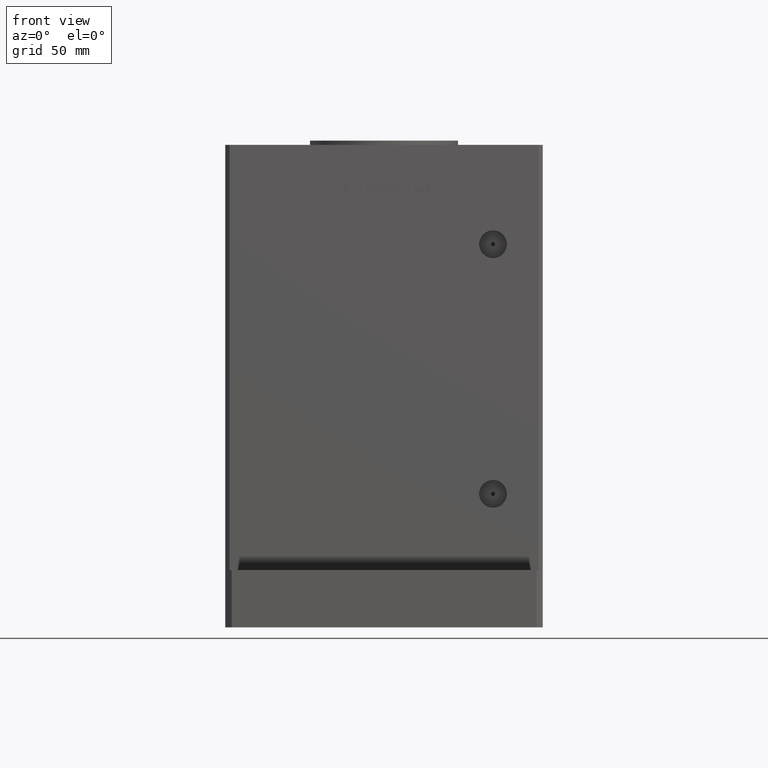
[diagram: clean part render]
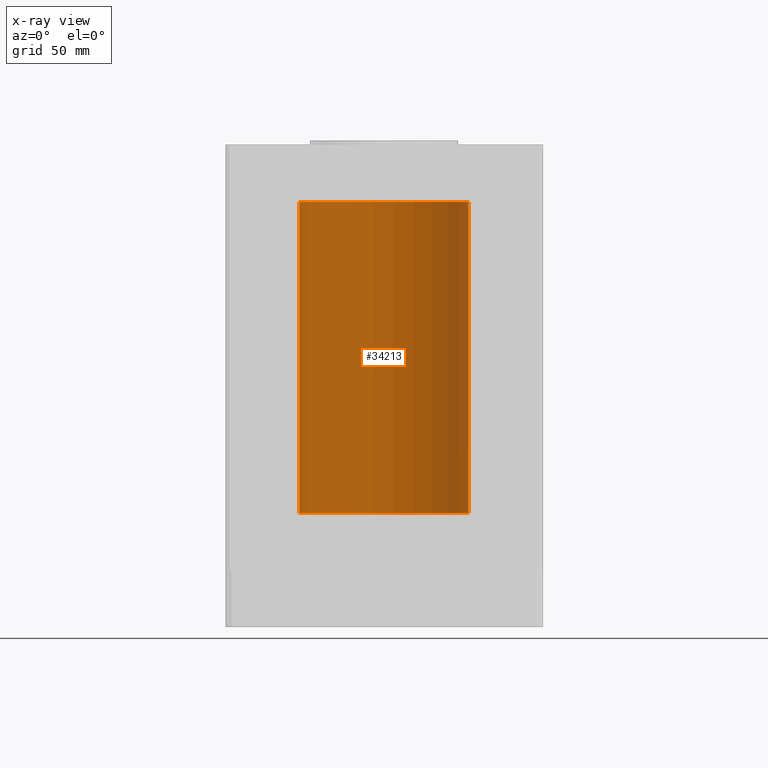
[diagram: x-ray — body ghosted, one internal face saturated and labeled with its STEP entity id]
A machine part, front view, then the same camera in x-ray: the body is ghosted and one INTERNAL B-rep face — a face not visible from any outside direction — is saturated and labeled: STEP entity #34213.
In plain terms, the highlighted cylindrical surface (partial cylindrical patch) has radius 40 mm, axis along (-0, -0, -1).
Its self-contained STEP definition (entity closure, byte-faithful):
#665 = AXIS2_PLACEMENT_3D ( 'NONE', #23748, #14524, #39236 ) ;
#4923 = ORIENTED_EDGE ( 'NONE', *, *, #43145, .F. ) ;
#6420 = VERTEX_POINT ( 'NONE', #47089 ) ;
#6900 = CARTESIAN_POINT ( 'NONE',  ( 40.00000000000000000, 4.898587196589413026E-15, 147.0000000000000000 ) ) ;
#7388 = EDGE_CURVE ( 'NONE', #22266, #31994, #44844, .T. ) ;
#7496 = EDGE_LOOP ( 'NONE', ( #4923, #38839, #38185, #36241 ) ) ;
#7855 = DIRECTION ( 'NONE',  ( -0.000000000000000000, -0.000000000000000000, -1.000000000000000000 ) ) ;
#11503 = EDGE_CURVE ( 'NONE', #31994, #6420, #12072, .T. ) ;
#12072 = LINE ( 'NONE', #37325, #38874 ) ;
#14524 = DIRECTION ( 'NONE',  ( -0.000000000000000000, 0.000000000000000000, 1.000000000000000000 ) ) ;
#19614 = DIRECTION ( 'NONE',  ( -0.000000000000000000, 0.000000000000000000, 1.000000000000000000 ) ) ;
#19768 = VECTOR ( 'NONE', #19898, 1000.000000000000000 ) ;
#19898 = DIRECTION ( 'NONE',  ( -0.000000000000000000, -0.000000000000000000, -1.000000000000000000 ) ) ;
#22198 = AXIS2_PLACEMENT_3D ( 'NONE', #49092, #7855, #32276 ) ;
#22266 = VERTEX_POINT ( 'NONE', #33515 ) ;
#23748 = CARTESIAN_POINT ( 'NONE',  ( 0.000000000000000000, 0.000000000000000000, 147.0000000000000000 ) ) ;
#24149 = CARTESIAN_POINT ( 'NONE',  ( -40.00000000000000000, 0.000000000000000000, 147.0000000000000000 ) ) ;
#29564 = CARTESIAN_POINT ( 'NONE',  ( 0.000000000000000000, 0.000000000000000000, 0.000000000000000000 ) ) ;
#31879 = CARTESIAN_POINT ( 'NONE',  ( 40.00000000000000000, 4.898587196589413026E-15, 0.000000000000000000 ) ) ;
#31994 = VERTEX_POINT ( 'NONE', #24149 ) ;
#32276 = DIRECTION ( 'NONE',  ( -1.000000000000000000, 0.000000000000000000, 0.000000000000000000 ) ) ;
#33510 = DIRECTION ( 'NONE',  ( -0.000000000000000000, -0.000000000000000000, -1.000000000000000000 ) ) ;
#33515 = CARTESIAN_POINT ( 'NONE',  ( 40.00000000000000000, 4.898587196589413026E-15, 147.0000000000000000 ) ) ;
#34213 = ADVANCED_FACE ( 'NONE', ( #44479 ), #36354, .F. ) ;
#36241 = ORIENTED_EDGE ( 'NONE', *, *, #45433, .F. ) ;
#36354 = CYLINDRICAL_SURFACE ( 'NONE', #22198, 40.00000000000000000 ) ;
#37325 = CARTESIAN_POINT ( 'NONE',  ( -40.00000000000000000, 0.000000000000000000, 147.0000000000000000 ) ) ;
#38185 = ORIENTED_EDGE ( 'NONE', *, *, #11503, .T. ) ;
#38839 = ORIENTED_EDGE ( 'NONE', *, *, #7388, .T. ) ;
#38874 = VECTOR ( 'NONE', #33510, 1000.000000000000000 ) ;
#39236 = DIRECTION ( 'NONE',  ( 1.000000000000000000, 0.000000000000000000, 0.000000000000000000 ) ) ;
#40529 = LINE ( 'NONE', #6900, #19768 ) ;
#41499 = AXIS2_PLACEMENT_3D ( 'NONE', #29564, #19614, #46117 ) ;
#42379 = CIRCLE ( 'NONE', #41499, 40.00000000000000000 ) ;
#43145 = EDGE_CURVE ( 'NONE', #22266, #48326, #40529, .T. ) ;
#44479 = FACE_OUTER_BOUND ( 'NONE', #7496, .T. ) ;
#44844 = CIRCLE ( 'NONE', #665, 40.00000000000000000 ) ;
#45433 = EDGE_CURVE ( 'NONE', #48326, #6420, #42379, .T. ) ;
#46117 = DIRECTION ( 'NONE',  ( 1.000000000000000000, 0.000000000000000000, 0.000000000000000000 ) ) ;
#47089 = CARTESIAN_POINT ( 'NONE',  ( -40.00000000000000000, 0.000000000000000000, 0.000000000000000000 ) ) ;
#48326 = VERTEX_POINT ( 'NONE', #31879 ) ;
#49092 = CARTESIAN_POINT ( 'NONE',  ( 0.000000000000000000, 0.000000000000000000, 147.0000000000000000 ) ) ;